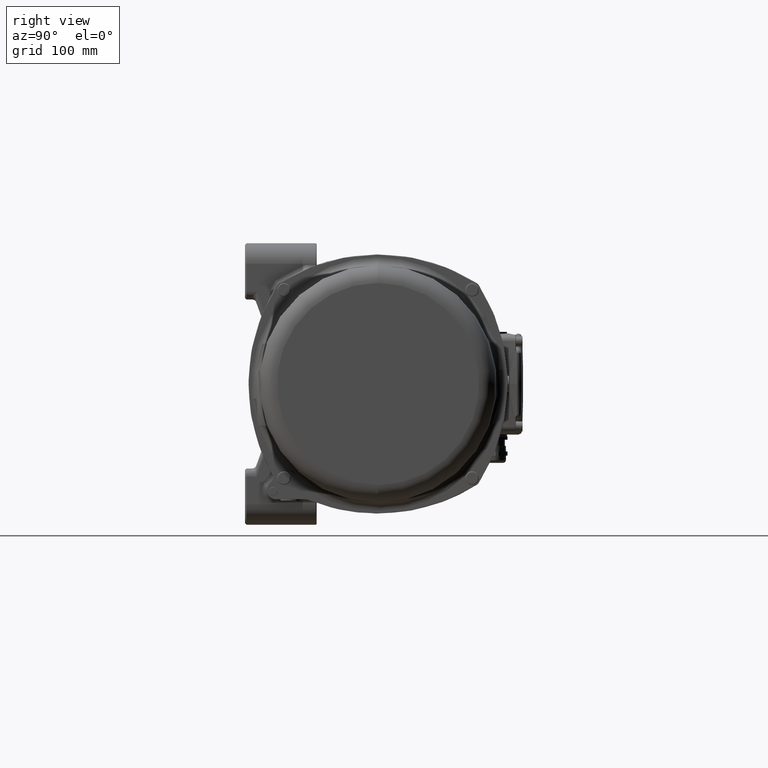
[diagram: clean part render]
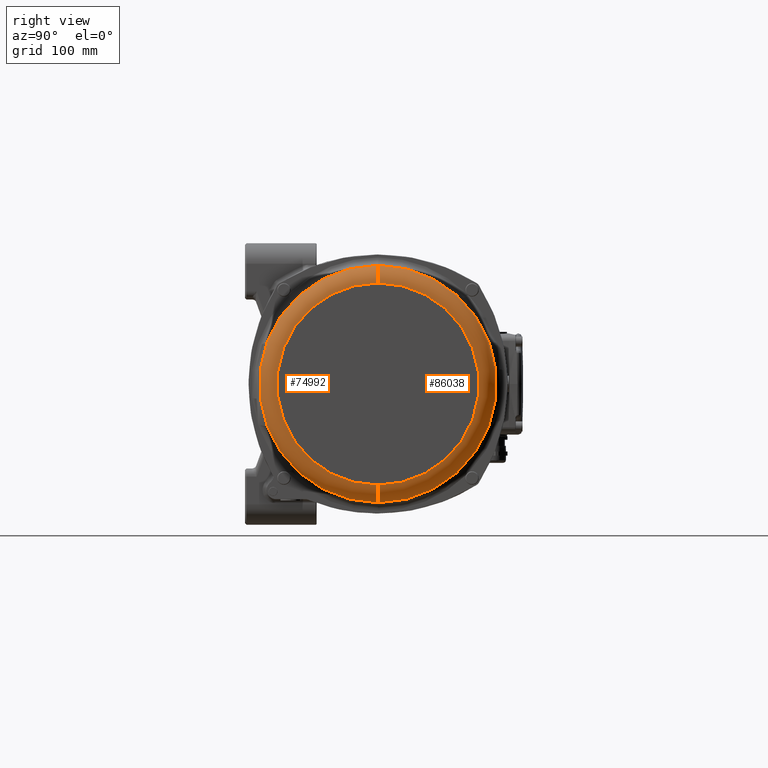
[diagram: same view with one multi-face feature highlighted, each face labeled with its STEP entity id]
A machine part, right view. The highlighted faces form ONE feature: a constant-radius fillet chain: 2 tangent blend faces with common blend radius 17.2 mm. The faces share edges in the B-rep.
Their STEP definitions:
[1] entity #74992 (Torus):
#575 = EDGE_CURVE ( 'NONE', #92332, #99273, #5690, .T. ) ;
#2870 = DIRECTION ( 'NONE',  ( 0.0000000000000000000, 0.0000000000000000000, 1.000000000000000000 ) ) ;
#5690 = CIRCLE ( 'NONE', #79404, 98.75000000000000000 ) ;
#5708 = DIRECTION ( 'NONE',  ( -1.000000000000000000, 0.0000000000000000000, 0.0000000000000000000 ) ) ;
#13540 = ORIENTED_EDGE ( 'NONE', *, *, #24759, .F. ) ;
#16492 = DIRECTION ( 'NONE',  ( 0.0000000000000000000, 0.0000000000000000000, 1.000000000000000000 ) ) ;
#16510 = CARTESIAN_POINT ( 'NONE',  ( 283.3000000000000100, 0.0000000000000000000, 0.0000000000000000000 ) ) ;
#24759 = EDGE_CURVE ( 'NONE', #92332, #43160, #103870, .T. ) ;
#28768 = DIRECTION ( 'NONE',  ( 0.0000000000000000000, -1.224646799147353900E-016, 1.000000000000000000 ) ) ;
#34983 = DIRECTION ( 'NONE',  ( -1.000000000000000000, 0.0000000000000000000, 0.0000000000000000000 ) ) ;
#37013 = ORIENTED_EDGE ( 'NONE', *, *, #60522, .F. ) ;
#42242 = AXIS2_PLACEMENT_3D ( 'NONE', #134245, #81079, #28768 ) ;
#43160 = VERTEX_POINT ( 'NONE', #107814 ) ;
#46395 = DIRECTION ( 'NONE',  ( 0.0000000000000000000, -1.000000000000000000, 0.0000000000000000000 ) ) ;
#49424 = AXIS2_PLACEMENT_3D ( 'NONE', #58881, #5708, #16492 ) ;
#49564 = DIRECTION ( 'NONE',  ( -1.000000000000000000, 0.0000000000000000000, 0.0000000000000000000 ) ) ;
#49827 = CARTESIAN_POINT ( 'NONE',  ( 283.3000000000000100, 0.0000000000000000000, 115.9500000000000200 ) ) ;
#49939 = VERTEX_POINT ( 'NONE', #49827 ) ;
#52539 = CARTESIAN_POINT ( 'NONE',  ( 300.5000000000000000, 1.314658338884683800E-014, -98.75000000000000000 ) ) ;
#56685 = DIRECTION ( 'NONE',  ( 0.0000000000000000000, 0.0000000000000000000, -1.000000000000000000 ) ) ;
#58881 = CARTESIAN_POINT ( 'NONE',  ( 283.3000000000000100, 0.0000000000000000000, 0.0000000000000000000 ) ) ;
#58891 = DIRECTION ( 'NONE',  ( 0.0000000000000000000, 0.0000000000000000000, 1.000000000000000000 ) ) ;
#60522 = EDGE_CURVE ( 'NONE', #43160, #49939, #109232, .T. ) ;
#63310 = AXIS2_PLACEMENT_3D ( 'NONE', #76762, #46395, #56685 ) ;
#70799 = AXIS2_PLACEMENT_3D ( 'NONE', #16510, #49564, #58891 ) ;
#74992 = ADVANCED_FACE ( 'NONE', ( #119778 ), #133134, .T. ) ;
#76762 = CARTESIAN_POINT ( 'NONE',  ( 283.3000000000000100, 0.0000000000000000000, 98.75000000000000000 ) ) ;
#79404 = AXIS2_PLACEMENT_3D ( 'NONE', #89619, #34983, #2870 ) ;
#81079 = DIRECTION ( 'NONE',  ( 0.0000000000000000000, 1.000000000000000000, 1.224646799147353200E-016 ) ) ;
#89619 = CARTESIAN_POINT ( 'NONE',  ( 300.5000000000000000, 0.0000000000000000000, 0.0000000000000000000 ) ) ;
#92306 = ORIENTED_EDGE ( 'NONE', *, *, #128172, .T. ) ;
#92332 = VERTEX_POINT ( 'NONE', #52539 ) ;
#99273 = VERTEX_POINT ( 'NONE', #133720 ) ;
#102007 = ORIENTED_EDGE ( 'NONE', *, *, #575, .T. ) ;
#103405 = EDGE_LOOP ( 'NONE', ( #13540, #102007, #92306, #37013 ) ) ;
#103870 = CIRCLE ( 'NONE', #42242, 17.19999999999999200 ) ;
#107814 = CARTESIAN_POINT ( 'NONE',  ( 283.3000000000000100, 1.419977963611356200E-014, -115.9500000000000200 ) ) ;
#109232 = CIRCLE ( 'NONE', #49424, 115.9500000000000200 ) ;
#119778 = FACE_OUTER_BOUND ( 'NONE', #103405, .T. ) ;
#128172 = EDGE_CURVE ( 'NONE', #99273, #49939, #131419, .T. ) ;
#131419 = CIRCLE ( 'NONE', #63310, 17.19999999999999200 ) ;
#133134 = TOROIDAL_SURFACE ( 'NONE', #70799, 98.75000000000000000, 17.19999999999999900 ) ;
#133720 = CARTESIAN_POINT ( 'NONE',  ( 300.5000000000000000, 0.0000000000000000000, 98.75000000000000000 ) ) ;
#134245 = CARTESIAN_POINT ( 'NONE',  ( 283.3000000000000100, 1.209338714158011300E-014, -98.75000000000000000 ) ) ;
[2] entity #86038 (Torus):
#15270 = ORIENTED_EDGE ( 'NONE', *, *, #84181, .F. ) ;
#19914 = EDGE_CURVE ( 'NONE', #99273, #92332, #27685, .T. ) ;
#24759 = EDGE_CURVE ( 'NONE', #92332, #43160, #103870, .T. ) ;
#27685 = CIRCLE ( 'NONE', #128432, 98.75000000000000000 ) ;
#28768 = DIRECTION ( 'NONE',  ( 0.0000000000000000000, -1.224646799147353900E-016, 1.000000000000000000 ) ) ;
#41368 = AXIS2_PLACEMENT_3D ( 'NONE', #121341, #109640, #119944 ) ;
#42242 = AXIS2_PLACEMENT_3D ( 'NONE', #134245, #81079, #28768 ) ;
#43160 = VERTEX_POINT ( 'NONE', #107814 ) ;
#46395 = DIRECTION ( 'NONE',  ( 0.0000000000000000000, -1.000000000000000000, 0.0000000000000000000 ) ) ;
#47259 = TOROIDAL_SURFACE ( 'NONE', #41368, 98.75000000000000000, 17.19999999999999900 ) ;
#49827 = CARTESIAN_POINT ( 'NONE',  ( 283.3000000000000100, 0.0000000000000000000, 115.9500000000000200 ) ) ;
#49939 = VERTEX_POINT ( 'NONE', #49827 ) ;
#52539 = CARTESIAN_POINT ( 'NONE',  ( 300.5000000000000000, 1.314658338884683800E-014, -98.75000000000000000 ) ) ;
#56685 = DIRECTION ( 'NONE',  ( 0.0000000000000000000, 0.0000000000000000000, -1.000000000000000000 ) ) ;
#63310 = AXIS2_PLACEMENT_3D ( 'NONE', #76762, #46395, #56685 ) ;
#70642 = CIRCLE ( 'NONE', #98327, 115.9500000000000200 ) ;
#76762 = CARTESIAN_POINT ( 'NONE',  ( 283.3000000000000100, 0.0000000000000000000, 98.75000000000000000 ) ) ;
#81079 = DIRECTION ( 'NONE',  ( 0.0000000000000000000, 1.000000000000000000, 1.224646799147353200E-016 ) ) ;
#81305 = DIRECTION ( 'NONE',  ( -1.000000000000000000, 0.0000000000000000000, 0.0000000000000000000 ) ) ;
#84181 = EDGE_CURVE ( 'NONE', #49939, #43160, #70642, .T. ) ;
#86038 = ADVANCED_FACE ( 'NONE', ( #110678 ), #47259, .T. ) ;
#87410 = ORIENTED_EDGE ( 'NONE', *, *, #19914, .T. ) ;
#90737 = ORIENTED_EDGE ( 'NONE', *, *, #128172, .F. ) ;
#91108 = CARTESIAN_POINT ( 'NONE',  ( 300.5000000000000000, 0.0000000000000000000, 0.0000000000000000000 ) ) ;
#92332 = VERTEX_POINT ( 'NONE', #52539 ) ;
#92931 = EDGE_LOOP ( 'NONE', ( #87410, #124794, #15270, #90737 ) ) ;
#98327 = AXIS2_PLACEMENT_3D ( 'NONE', #130880, #132739, #122066 ) ;
#99273 = VERTEX_POINT ( 'NONE', #133720 ) ;
#103870 = CIRCLE ( 'NONE', #42242, 17.19999999999999200 ) ;
#107814 = CARTESIAN_POINT ( 'NONE',  ( 283.3000000000000100, 1.419977963611356200E-014, -115.9500000000000200 ) ) ;
#109640 = DIRECTION ( 'NONE',  ( -1.000000000000000000, 0.0000000000000000000, 0.0000000000000000000 ) ) ;
#110678 = FACE_OUTER_BOUND ( 'NONE', #92931, .T. ) ;
#113480 = DIRECTION ( 'NONE',  ( 0.0000000000000000000, 0.0000000000000000000, 1.000000000000000000 ) ) ;
#119944 = DIRECTION ( 'NONE',  ( 0.0000000000000000000, 0.0000000000000000000, 1.000000000000000000 ) ) ;
#121341 = CARTESIAN_POINT ( 'NONE',  ( 283.3000000000000100, 0.0000000000000000000, 0.0000000000000000000 ) ) ;
#122066 = DIRECTION ( 'NONE',  ( 0.0000000000000000000, 0.0000000000000000000, 1.000000000000000000 ) ) ;
#124794 = ORIENTED_EDGE ( 'NONE', *, *, #24759, .T. ) ;
#128172 = EDGE_CURVE ( 'NONE', #99273, #49939, #131419, .T. ) ;
#128432 = AXIS2_PLACEMENT_3D ( 'NONE', #91108, #81305, #113480 ) ;
#130880 = CARTESIAN_POINT ( 'NONE',  ( 283.3000000000000100, 0.0000000000000000000, 0.0000000000000000000 ) ) ;
#131419 = CIRCLE ( 'NONE', #63310, 17.19999999999999200 ) ;
#132739 = DIRECTION ( 'NONE',  ( -1.000000000000000000, 0.0000000000000000000, 0.0000000000000000000 ) ) ;
#133720 = CARTESIAN_POINT ( 'NONE',  ( 300.5000000000000000, 0.0000000000000000000, 98.75000000000000000 ) ) ;
#134245 = CARTESIAN_POINT ( 'NONE',  ( 283.3000000000000100, 1.209338714158011300E-014, -98.75000000000000000 ) ) ;